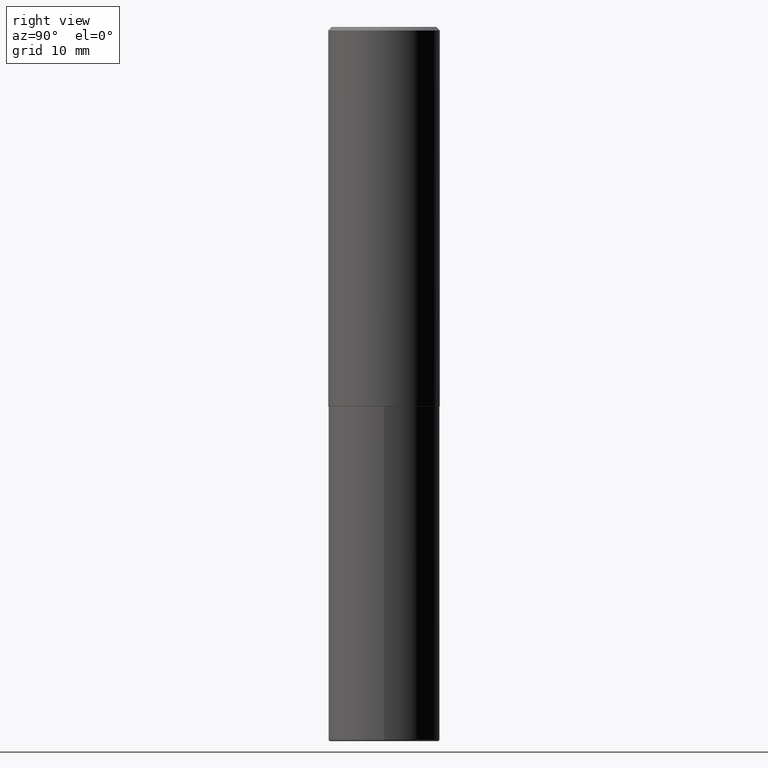
[diagram: clean part render]
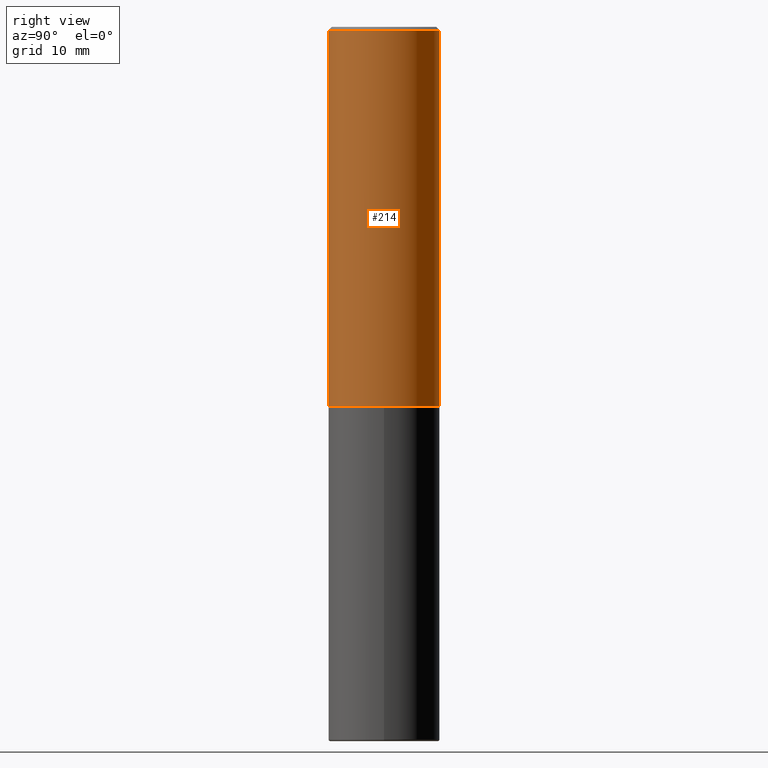
[diagram: same view with one face highlighted and labeled with its STEP entity id]
A machine part, right view. The second image highlights one B-rep face of the part: STEP entity #214.
In plain terms, the highlighted cylindrical surface (partial cylindrical patch) has radius 7.9375 mm, axis along (-0, 0, 1).
Its self-contained STEP definition (entity closure, byte-faithful):
#9 = EDGE_CURVE ( 'NONE', #54, #126, #163, .T. ) ;
#22 = DIRECTION ( 'NONE',  ( -6.982962677686265133E-15, -1.000000000000000000, 3.496765431890256920E-15 ) ) ;
#26 = EDGE_CURVE ( 'NONE', #126, #359, #203, .T. ) ;
#46 = VECTOR ( 'NONE', #189, 39.37007874015748143 ) ;
#54 = VERTEX_POINT ( 'NONE', #133 ) ;
#64 = CARTESIAN_POINT ( 'NONE',  ( -2.182175836776959136E-15, -0.3125000000000001665, 1.091363756921824478E-15 ) ) ;
#66 = ORIENTED_EDGE ( 'NONE', *, *, #9, .T. ) ;
#68 = DIRECTION ( 'NONE',  ( -2.444852431726452894E-29, 3.492364022149836358E-15, 1.000000000000000000 ) ) ;
#93 = CARTESIAN_POINT ( 'NONE',  ( 4.889704863452922148E-31, -6.984728044299695791E-17, -0.02000000000000006981 ) ) ;
#126 = VERTEX_POINT ( 'NONE', #372 ) ;
#133 = CARTESIAN_POINT ( 'NONE',  ( -2.182175836776908254E-15, -0.3125000000000077161, -2.123999999999998334 ) ) ;
#160 = VERTEX_POINT ( 'NONE', #246 ) ;
#161 = CARTESIAN_POINT ( 'NONE',  ( 0.000000000000000000, 0.000000000000000000, 0.000000000000000000 ) ) ;
#163 = CIRCLE ( 'NONE', #250, 0.3125000000000002776 ) ;
#189 = DIRECTION ( 'NONE',  ( -2.444852431726452614E-29, 3.492364022149836358E-15, 1.000000000000000000 ) ) ;
#191 = FACE_OUTER_BOUND ( 'NONE', #253, .T. ) ;
#194 = EDGE_CURVE ( 'NONE', #160, #359, #367, .T. ) ;
#203 = LINE ( 'NONE', #397, #418 ) ;
#214 = ADVANCED_FACE ( 'NONE', ( #191 ), #319, .T. ) ;
#222 = DIRECTION ( 'NONE',  ( -6.982962677686265133E-15, -1.000000000000000000, 3.492364022149836358E-15 ) ) ;
#227 = CARTESIAN_POINT ( 'NONE',  ( 2.182175836776958741E-15, 0.3124999999999999445, -0.02000000000000116268 ) ) ;
#229 = LINE ( 'NONE', #64, #46 ) ;
#242 = EDGE_CURVE ( 'NONE', #54, #160, #229, .T. ) ;
#246 = CARTESIAN_POINT ( 'NONE',  ( -2.143905624303602824E-15, -0.3125000000000000555, -0.01999999999999897693 ) ) ;
#250 = AXIS2_PLACEMENT_3D ( 'NONE', #267, #68, #295 ) ;
#253 = EDGE_LOOP ( 'NONE', ( #66, #283, #291, #347 ) ) ;
#267 = CARTESIAN_POINT ( 'NONE',  ( 5.192866564986985411E-29, -7.417781183046251262E-15, -2.123999999999999666 ) ) ;
#280 = AXIS2_PLACEMENT_3D ( 'NONE', #161, #348, #222 ) ;
#283 = ORIENTED_EDGE ( 'NONE', *, *, #26, .T. ) ;
#291 = ORIENTED_EDGE ( 'NONE', *, *, #194, .F. ) ;
#295 = DIRECTION ( 'NONE',  ( -6.982962677686265922E-15, -1.000000000000000000, 3.496765431890253764E-15 ) ) ;
#307 = DIRECTION ( 'NONE',  ( -2.444852431726452894E-29, 3.492364022149836358E-15, 1.000000000000000000 ) ) ;
#319 = CYLINDRICAL_SURFACE ( 'NONE', #280, 0.3125000000000001665 ) ;
#347 = ORIENTED_EDGE ( 'NONE', *, *, #242, .F. ) ;
#348 = DIRECTION ( 'NONE',  ( -2.444852431726452894E-29, 3.492364022149836358E-15, 1.000000000000000000 ) ) ;
#351 = AXIS2_PLACEMENT_3D ( 'NONE', #93, #307, #22 ) ;
#359 = VERTEX_POINT ( 'NONE', #227 ) ;
#363 = DIRECTION ( 'NONE',  ( -2.444852431726452614E-29, 3.492364022149836358E-15, 1.000000000000000000 ) ) ;
#367 = CIRCLE ( 'NONE', #351, 0.3125000000000000000 ) ;
#372 = CARTESIAN_POINT ( 'NONE',  ( 2.220446049250340297E-15, 0.3124999999999928391, -2.124000000000000554 ) ) ;
#397 = CARTESIAN_POINT ( 'NONE',  ( 2.220446049250313475E-15, 0.3125000000000001665, -1.091363756921824478E-15 ) ) ;
#418 = VECTOR ( 'NONE', #363, 39.37007874015748143 ) ;